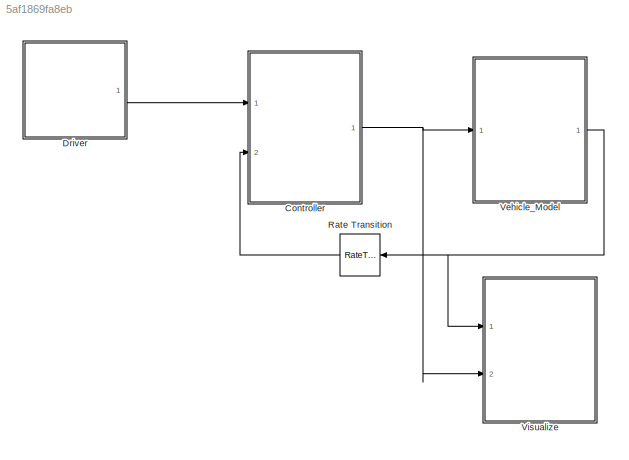
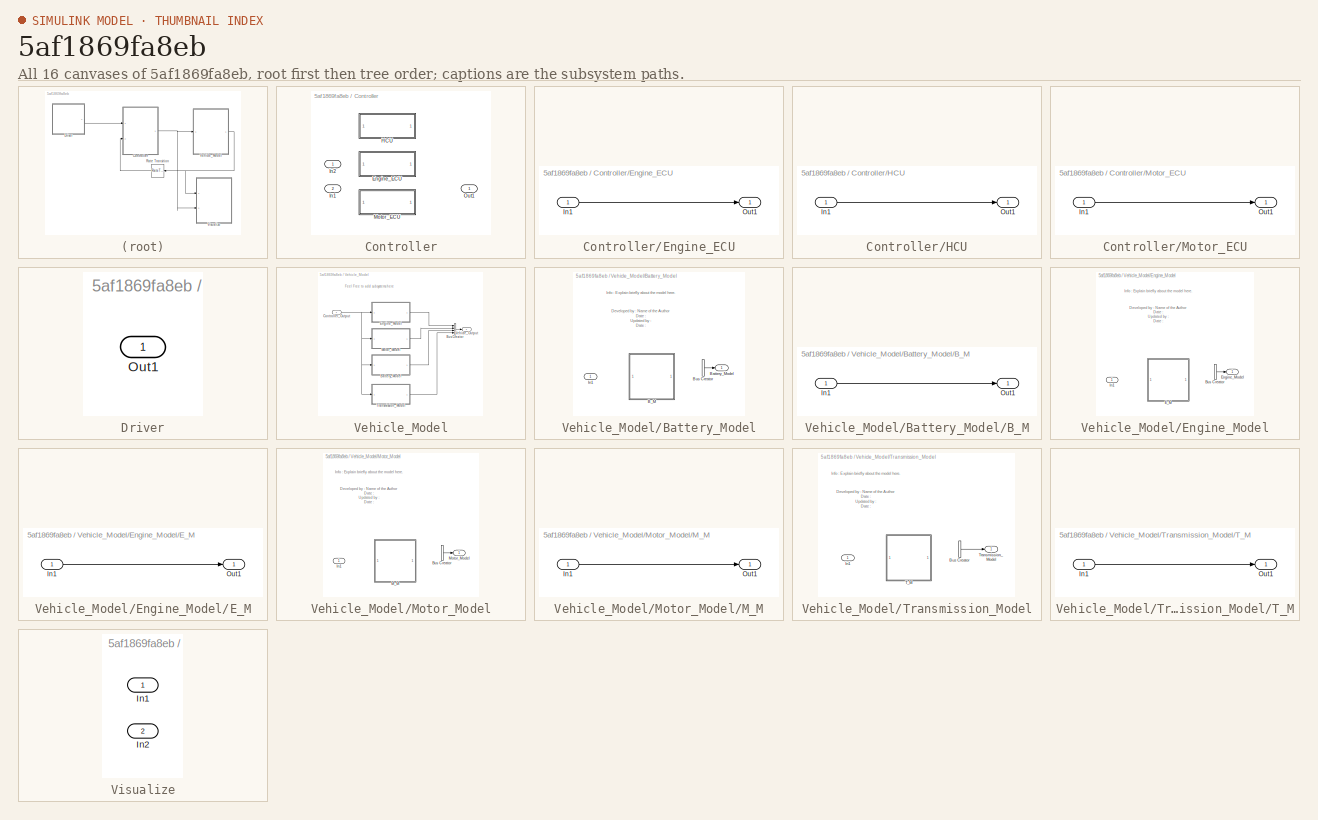
[diagram: thumbnail index - all 16 canvases of the model, root first then tree order]
MODEL slx_5af1869fa8eb
KIND model
CONFIG AbsTol = auto
CONFIG EnableMultiTasking = off
CONFIG FixedStep = auto
CONFIG MaxStep = auto
CONFIG MinStep = auto
CONFIG RelTol = 1e-3
CONFIG SampleTimeConstraint = Unconstrained
CONFIG Solver = VariableStepAuto
CONFIG SolverName = VariableStepAuto
CONFIG StartTime = 0.0
CONFIG StopTime = 10.0
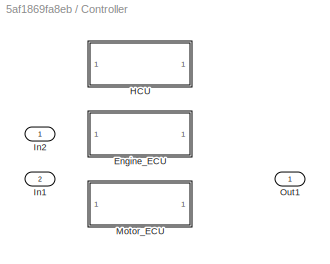
BLOCK [SubSystem] Controller
  Ports = [2, 1]
  RequestExecContextInheritance = off
BLOCK [SubSystem] Controller/Engine_ECU
  Ports = [1, 1]
  RequestExecContextInheritance = off
BLOCK [Inport] Controller/Engine_ECU/In1
  IconDisplay = Port number
BLOCK [Outport] Controller/Engine_ECU/Out1
  IconDisplay = Port number
BLOCK [SubSystem] Controller/HCU
  Ports = [1, 1]
  RequestExecContextInheritance = off
BLOCK [Inport] Controller/HCU/In1
  IconDisplay = Port number
BLOCK [Outport] Controller/HCU/Out1
  IconDisplay = Port number
BLOCK [Inport] Controller/In1
  IconDisplay = Port number
  Port = 2
BLOCK [Inport] Controller/In2
  IconDisplay = Port number
BLOCK [SubSystem] Controller/Motor_ECU
  Ports = [1, 1]
  RequestExecContextInheritance = off
BLOCK [Inport] Controller/Motor_ECU/In1
  IconDisplay = Port number
BLOCK [Outport] Controller/Motor_ECU/Out1
  IconDisplay = Port number
BLOCK [Outport] Controller/Out1
  IconDisplay = Port number
BLOCK [SubSystem] Driver
  Ports = [0, 1]
  RequestExecContextInheritance = off
BLOCK [Outport] Driver/Out1
  IconDisplay = Port number
BLOCK [RateTransition] Rate Transition
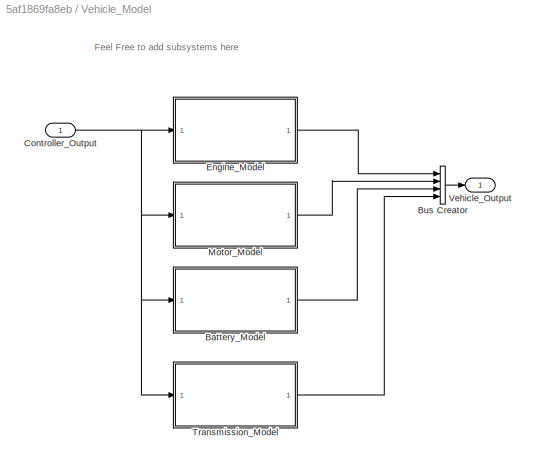
BLOCK [SubSystem] Vehicle_Model
  Ports = [1, 1]
  RequestExecContextInheritance = off
BLOCK [SubSystem] Vehicle_Model/Battery_Model
  Ports = [1, 1]
  RequestExecContextInheritance = off
BLOCK [SubSystem] Vehicle_Model/Battery_Model/B_M
  Ports = [1, 1]
  RequestExecContextInheritance = off
BLOCK [Inport] Vehicle_Model/Battery_Model/B_M/In1
  IconDisplay = Port number
BLOCK [Outport] Vehicle_Model/Battery_Model/B_M/Out1
  IconDisplay = Port number
BLOCK [Outport] Vehicle_Model/Battery_Model/Battery_Model
  IconDisplay = Port number
BLOCK [BusCreator] Vehicle_Model/Battery_Model/Bus Creator
  DisplayOption = bar
  InheritFromInputs = on
  Inputs = 2
  Ports = [2, 1]
BLOCK [Inport] Vehicle_Model/Battery_Model/In1
  IconDisplay = Port number
BLOCK [BusCreator] Vehicle_Model/Bus Creator
  DisplayOption = bar
  InheritFromInputs = on
  Inputs = 4
  Ports = [4, 1]
BLOCK [Inport] Vehicle_Model/Controller_Output
  IconDisplay = Port number
BLOCK [SubSystem] Vehicle_Model/Engine_Model
  Ports = [1, 1]
  RequestExecContextInheritance = off
BLOCK [BusCreator] Vehicle_Model/Engine_Model/Bus Creator
  DisplayOption = bar
  InheritFromInputs = on
  Inputs = 2
  Ports = [2, 1]
BLOCK [SubSystem] Vehicle_Model/Engine_Model/E_M
  Ports = [1, 1]
  RequestExecContextInheritance = off
BLOCK [Inport] Vehicle_Model/Engine_Model/E_M/In1
  IconDisplay = Port number
BLOCK [Outport] Vehicle_Model/Engine_Model/E_M/Out1
  IconDisplay = Port number
BLOCK [Outport] Vehicle_Model/Engine_Model/Engine_Model
  IconDisplay = Port number
BLOCK [Inport] Vehicle_Model/Engine_Model/In1
  IconDisplay = Port number
BLOCK [SubSystem] Vehicle_Model/Motor_Model
  Ports = [1, 1]
  RequestExecContextInheritance = off
BLOCK [BusCreator] Vehicle_Model/Motor_Model/Bus Creator
  DisplayOption = bar
  InheritFromInputs = on
  Inputs = 2
  Ports = [2, 1]
BLOCK [Inport] Vehicle_Model/Motor_Model/In1
  IconDisplay = Port number
BLOCK [SubSystem] Vehicle_Model/Motor_Model/M_M
  Ports = [1, 1]
  RequestExecContextInheritance = off
BLOCK [Inport] Vehicle_Model/Motor_Model/M_M/In1
  IconDisplay = Port number
BLOCK [Outport] Vehicle_Model/Motor_Model/M_M/Out1
  IconDisplay = Port number
BLOCK [Outport] Vehicle_Model/Motor_Model/Motor_Model
  IconDisplay = Port number
BLOCK [SubSystem] Vehicle_Model/Transmission_Model
  Ports = [1, 1]
  RequestExecContextInheritance = off
BLOCK [BusCreator] Vehicle_Model/Transmission_Model/Bus Creator
  DisplayOption = bar
  InheritFromInputs = on
  Inputs = 2
  Ports = [2, 1]
BLOCK [Inport] Vehicle_Model/Transmission_Model/In1
  IconDisplay = Port number
BLOCK [SubSystem] Vehicle_Model/Transmission_Model/T_M
  Ports = [1, 1]
  RequestExecContextInheritance = off
BLOCK [Inport] Vehicle_Model/Transmission_Model/T_M/In1
  IconDisplay = Port number
BLOCK [Outport] Vehicle_Model/Transmission_Model/T_M/Out1
  IconDisplay = Port number
BLOCK [Outport] Vehicle_Model/Transmission_Model/Transmission_Model
  IconDisplay = Port number
BLOCK [Outport] Vehicle_Model/Vehicle_Output
  IconDisplay = Port number
BLOCK [SubSystem] Visualize
  Ports = [2]
  RequestExecContextInheritance = off
BLOCK [Inport] Visualize/In1
  IconDisplay = Port number
BLOCK [Inport] Visualize/In2
  IconDisplay = Port number
  Port = 2
ANNOTATION Vehicle_Model: Feel Free to add subsystems here
ANNOTATION Vehicle_Model/Battery_Model: Info : Explain briefly about the model here.
ANNOTATION Vehicle_Model/Battery_Model: Developed by : Name of the Author Date : Updated by : Date :
ANNOTATION Vehicle_Model/Engine_Model: Info : Explain briefly about the model here.
ANNOTATION Vehicle_Model/Engine_Model: Developed by : Name of the Author Date : Updated by : Date :
ANNOTATION Vehicle_Model/Motor_Model: Info : Explain briefly about the model here.
ANNOTATION Vehicle_Model/Motor_Model: Developed by : Name of the Author Date : Updated by : Date :
ANNOTATION Vehicle_Model/Transmission_Model: Info : Explain briefly about the model here.
ANNOTATION Vehicle_Model/Transmission_Model: Developed by : Name of the Author Date : Updated by : Date :
LINE Controller/Engine_ECU/In1:1 -> Controller/Engine_ECU/Out1:1
LINE Controller/HCU/In1:1 -> Controller/HCU/Out1:1
LINE Controller/Motor_ECU/In1:1 -> Controller/Motor_ECU/Out1:1
NET Controller:1 -> Vehicle_Model:1, Visualize:2
LINE Driver:1 -> Controller:1
LINE Rate Transition:1 -> Controller:2
LINE Vehicle_Model/Battery_Model/B_M/In1:1 -> Vehicle_Model/Battery_Model/B_M/Out1:1
LINE Vehicle_Model/Battery_Model/Bus Creator:1 -> Vehicle_Model/Battery_Model/Battery_Model:1
LINE Vehicle_Model/Battery_Model:1 -> Vehicle_Model/Bus Creator:3
LINE Vehicle_Model/Bus Creator:1 -> Vehicle_Model/Vehicle_Output:1
NET Vehicle_Model/Controller_Output:1 -> Vehicle_Model/Battery_Model:1, Vehicle_Model/Engine_Model:1, Vehicle_Model/Motor_Model:1, Vehicle_Model/Transmission_Model:1
LINE Vehicle_Model/Engine_Model/Bus Creator:1 -> Vehicle_Model/Engine_Model/Engine_Model:1
LINE Vehicle_Model/Engine_Model/E_M/In1:1 -> Vehicle_Model/Engine_Model/E_M/Out1:1
LINE Vehicle_Model/Engine_Model:1 -> Vehicle_Model/Bus Creator:1
LINE Vehicle_Model/Motor_Model/Bus Creator:1 -> Vehicle_Model/Motor_Model/Motor_Model:1
LINE Vehicle_Model/Motor_Model/M_M/In1:1 -> Vehicle_Model/Motor_Model/M_M/Out1:1
LINE Vehicle_Model/Motor_Model:1 -> Vehicle_Model/Bus Creator:2
LINE Vehicle_Model/Transmission_Model/Bus Creator:1 -> Vehicle_Model/Transmission_Model/Transmission_Model:1
LINE Vehicle_Model/Transmission_Model/T_M/In1:1 -> Vehicle_Model/Transmission_Model/T_M/Out1:1
LINE Vehicle_Model/Transmission_Model:1 -> Vehicle_Model/Bus Creator:4
NET Vehicle_Model:1 -> Rate Transition:1, Visualize:1
note: NET lines group one-source signal fan-out (src -> all destinations, sorted); 1:1 wires keep LINE
